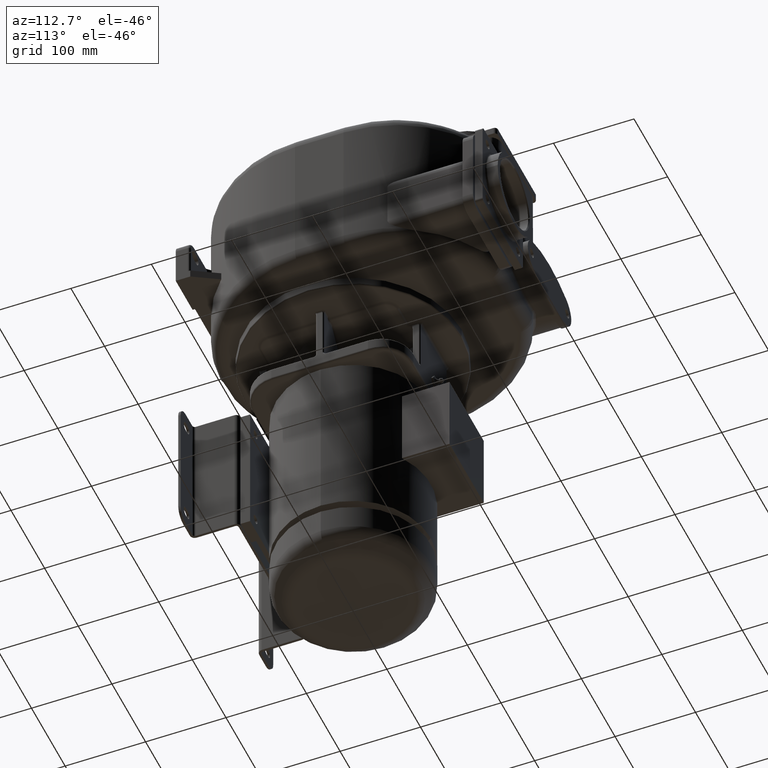
[diagram: clean part render]
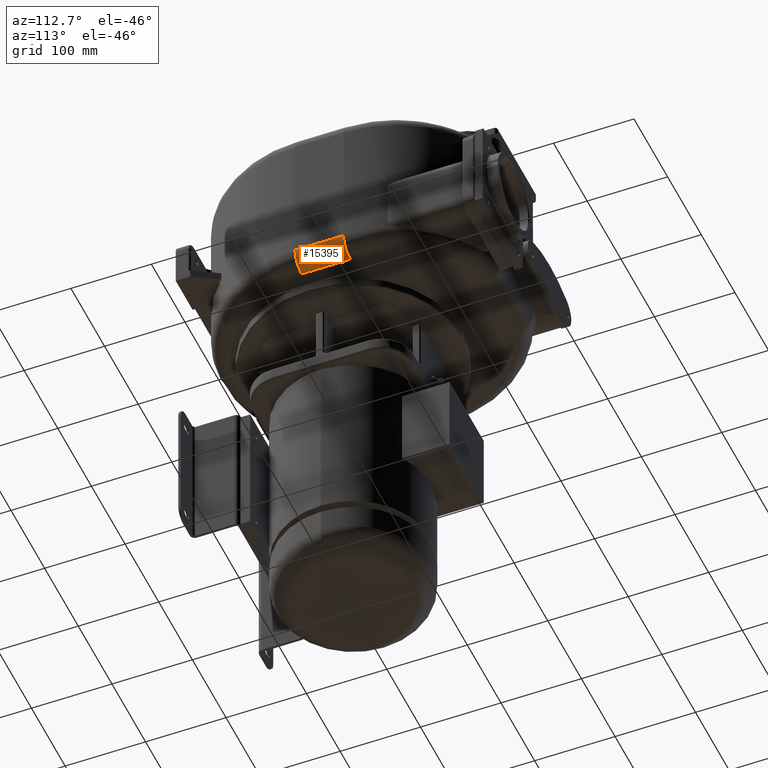
[diagram: same view with one face highlighted and labeled with its STEP entity id]
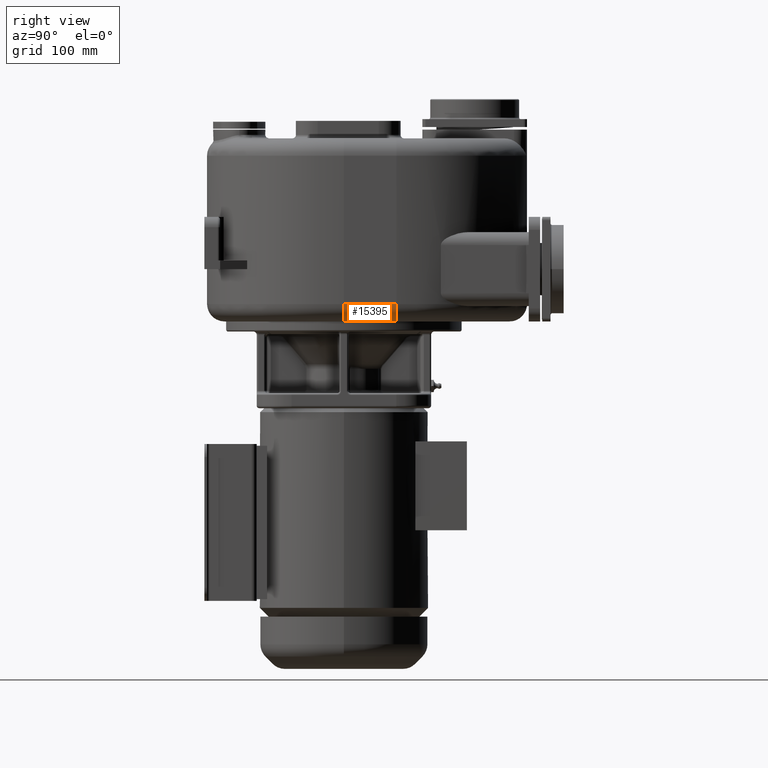
[diagram: same view with one face highlighted and labeled with its STEP entity id]
A machine part, auxiliary view. The second image highlights one B-rep face of the part: STEP entity #15395.
A second angle (right view) of the same face is appended — the face is thin or edge-on in the first view.
In plain terms, the highlighted cylindrical surface (edge-blend (fillet) strip) has radius 20 mm, axis along (0, -1, 0).
Its self-contained STEP definition (entity closure, byte-faithful):
#449=DIRECTION('',(0.E0,-1.E0,0.E0));
#450=VECTOR('',#449,6.031889516343E1);
#451=CARTESIAN_POINT('',(1.53E2,6.031889516343E1,9.75E1));
#452=LINE('',#451,#450);
#1733=CARTESIAN_POINT('',(1.53E2,6.031889516343E1,1.175E2));
#1734=DIRECTION('',(0.E0,-1.E0,0.E0));
#1735=DIRECTION('',(0.E0,0.E0,-1.E0));
#1736=AXIS2_PLACEMENT_3D('',#1733,#1734,#1735);
#1830=CARTESIAN_POINT('',(1.53E2,0.E0,1.175E2));
#1831=DIRECTION('',(0.E0,-1.E0,0.E0));
#1832=DIRECTION('',(0.E0,0.E0,-1.E0));
#1833=AXIS2_PLACEMENT_3D('',#1830,#1831,#1832);
#2954=DIRECTION('',(0.E0,-1.E0,0.E0));
#2955=VECTOR('',#2954,6.031889516340E1);
#2956=CARTESIAN_POINT('',(1.73E2,6.031889516342E1,1.175E2));
#2957=LINE('',#2956,#2955);
#13089=CARTESIAN_POINT('',(1.53E2,6.031889516343E1,9.75E1));
#13090=VERTEX_POINT('',#13089);
#13091=CARTESIAN_POINT('',(1.53E2,0.E0,9.75E1));
#13092=VERTEX_POINT('',#13091);
#13093=CARTESIAN_POINT('',(1.73E2,6.031889516342E1,1.175E2));
#13094=CARTESIAN_POINT('',(1.73E2,1.978150976356E-11,1.175E2));
#13095=VERTEX_POINT('',#13093);
#13096=VERTEX_POINT('',#13094);
#15382=CARTESIAN_POINT('',(1.53E2,6.113505467706E1,1.175E2));
#15383=DIRECTION('',(0.E0,-1.E0,0.E0));
#15384=DIRECTION('',(0.E0,0.E0,-1.E0));
#15385=AXIS2_PLACEMENT_3D('',#15382,#15383,#15384);
#15386=CYLINDRICAL_SURFACE('',#15385,2.E1);
#15387=ORIENTED_EDGE('',*,*,#14445,.T.);
#15389=ORIENTED_EDGE('',*,*,#15388,.T.);
#15391=ORIENTED_EDGE('',*,*,#15390,.F.);
#15392=ORIENTED_EDGE('',*,*,#15050,.F.);
#15393=EDGE_LOOP('',(#15387,#15389,#15391,#15392));
#15394=FACE_OUTER_BOUND('',#15393,.F.);
#15395=ADVANCED_FACE('',(#15394),#15386,.T.);
#1737=CIRCLE('',#1736,2.E1);
#1834=CIRCLE('',#1833,2.E1);
#14445=EDGE_CURVE('',#13090,#13092,#452,.T.);
#15050=EDGE_CURVE('',#13090,#13095,#1737,.T.);
#15388=EDGE_CURVE('',#13092,#13096,#1834,.T.);
#15390=EDGE_CURVE('',#13095,#13096,#2957,.T.);